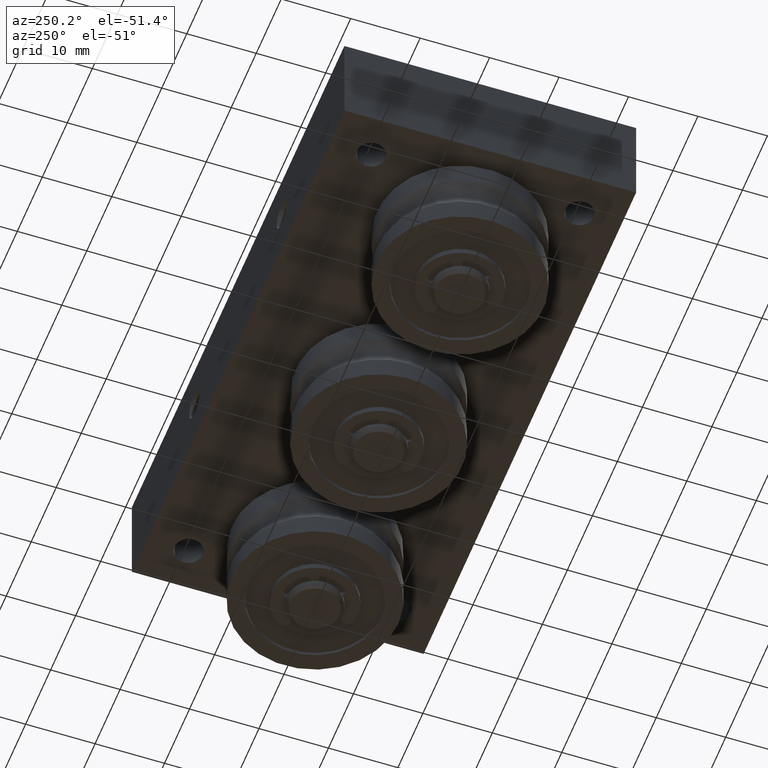
[diagram: clean part render]
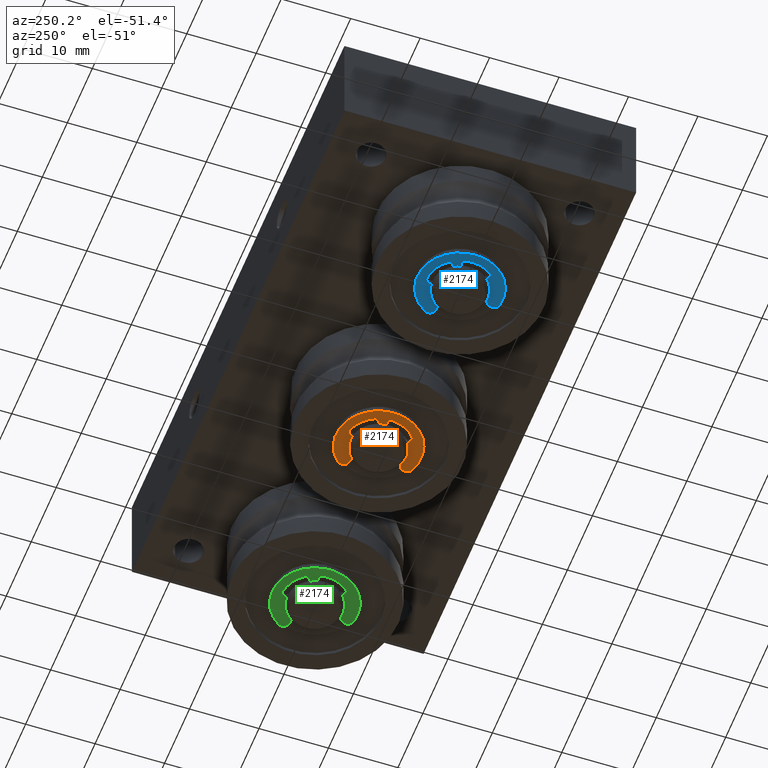
[diagram: same view with three faces highlighted in distinct colors, each labeled with its STEP entity id]
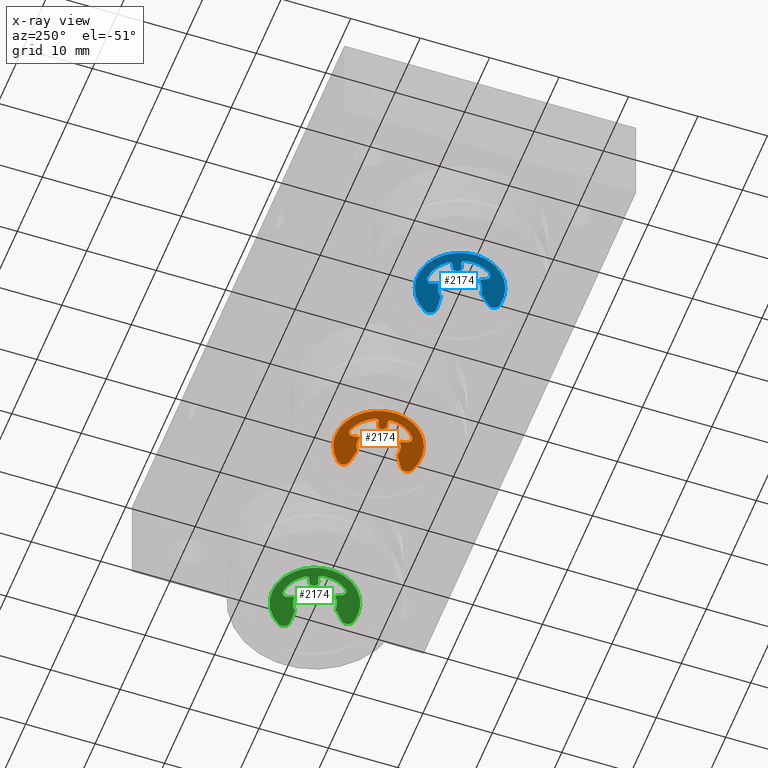
[diagram: x-ray of the same camera — body ghosted, the three highlighted faces saturated]
A machine part, auxiliary view with three faces highlighted in distinct colors.
The next image is the same camera in x-ray (body ghosted, the three faces saturated) — at least one of them is partly hidden behind the body in this view.
Their STEP definitions:

[orange] entity #2174 — the highlighted planar face has unit normal (0, 0, -1).
#230=PLANE('',#2634);
#393=FACE_OUTER_BOUND('',#564,.T.);
#564=EDGE_LOOP('',(#1906,#1907,#1908,#1909,#1910,#1911,#1912,#1913,#1914,
#1915,#1916,#1917,#1918,#1919,#1920,#1921,#1922,#1923,#1924,#1925));
#688=LINE('',#3798,#824);
#693=LINE('',#3816,#829);
#699=LINE('',#3840,#835);
#703=LINE('',#3852,#839);
#709=LINE('',#3876,#845);
#714=LINE('',#3894,#850);
#824=VECTOR('',#3150,10.);
#829=VECTOR('',#3169,10.);
#835=VECTOR('',#3195,10.);
#839=VECTOR('',#3207,10.);
#845=VECTOR('',#3233,10.);
#850=VECTOR('',#3252,10.);
#945=CIRCLE('',#2586,6.15);
#947=CIRCLE('',#2589,0.9);
#949=CIRCLE('',#2593,3.);
#951=CIRCLE('',#2596,0.18);
#953=CIRCLE('',#2600,0.72);
#955=CIRCLE('',#2603,4.8);
#957=CIRCLE('',#2606,0.48);
#959=CIRCLE('',#2610,0.6);
#961=CIRCLE('',#2614,0.48);
#963=CIRCLE('',#2617,4.8);
#965=CIRCLE('',#2620,0.72);
#967=CIRCLE('',#2624,0.18);
#969=CIRCLE('',#2627,3.);
#971=CIRCLE('',#2631,0.9);
#1107=VERTEX_POINT('',#3782);
#1108=VERTEX_POINT('',#3783);
#1111=VERTEX_POINT('',#3791);
#1113=VERTEX_POINT('',#3797);
#1115=VERTEX_POINT('',#3803);
#1117=VERTEX_POINT('',#3809);
#1119=VERTEX_POINT('',#3815);
#1121=VERTEX_POINT('',#3821);
#1123=VERTEX_POINT('',#3827);
#1125=VERTEX_POINT('',#3833);
#1127=VERTEX_POINT('',#3839);
#1129=VERTEX_POINT('',#3845);
#1131=VERTEX_POINT('',#3851);
#1133=VERTEX_POINT('',#3857);
#1135=VERTEX_POINT('',#3863);
#1137=VERTEX_POINT('',#3869);
#1139=VERTEX_POINT('',#3875);
#1141=VERTEX_POINT('',#3881);
#1143=VERTEX_POINT('',#3887);
#1145=VERTEX_POINT('',#3893);
#1349=EDGE_CURVE('',#1107,#1108,#945,.T.);
#1353=EDGE_CURVE('',#1108,#1111,#947,.T.);
#1356=EDGE_CURVE('',#1111,#1113,#688,.T.);
#1359=EDGE_CURVE('',#1113,#1115,#949,.T.);
#1362=EDGE_CURVE('',#1115,#1117,#951,.T.);
#1365=EDGE_CURVE('',#1117,#1119,#693,.T.);
#1368=EDGE_CURVE('',#1119,#1121,#953,.T.);
#1371=EDGE_CURVE('',#1121,#1123,#955,.T.);
#1374=EDGE_CURVE('',#1123,#1125,#957,.T.);
#1377=EDGE_CURVE('',#1125,#1127,#699,.T.);
#1380=EDGE_CURVE('',#1127,#1129,#959,.T.);
#1383=EDGE_CURVE('',#1129,#1131,#703,.T.);
#1386=EDGE_CURVE('',#1131,#1133,#961,.T.);
#1389=EDGE_CURVE('',#1133,#1135,#963,.T.);
#1392=EDGE_CURVE('',#1135,#1137,#965,.T.);
#1395=EDGE_CURVE('',#1137,#1139,#709,.T.);
#1398=EDGE_CURVE('',#1139,#1141,#967,.T.);
#1401=EDGE_CURVE('',#1141,#1143,#969,.T.);
#1404=EDGE_CURVE('',#1143,#1145,#714,.T.);
#1407=EDGE_CURVE('',#1145,#1107,#971,.T.);
#1906=ORIENTED_EDGE('',*,*,#1349,.F.);
#1907=ORIENTED_EDGE('',*,*,#1407,.F.);
#1908=ORIENTED_EDGE('',*,*,#1404,.F.);
#1909=ORIENTED_EDGE('',*,*,#1401,.F.);
#1910=ORIENTED_EDGE('',*,*,#1398,.F.);
#1911=ORIENTED_EDGE('',*,*,#1395,.F.);
#1912=ORIENTED_EDGE('',*,*,#1392,.F.);
#1913=ORIENTED_EDGE('',*,*,#1389,.F.);
#1914=ORIENTED_EDGE('',*,*,#1386,.F.);
#1915=ORIENTED_EDGE('',*,*,#1383,.F.);
#1916=ORIENTED_EDGE('',*,*,#1380,.F.);
#1917=ORIENTED_EDGE('',*,*,#1377,.F.);
#1918=ORIENTED_EDGE('',*,*,#1374,.F.);
#1919=ORIENTED_EDGE('',*,*,#1371,.F.);
#1920=ORIENTED_EDGE('',*,*,#1368,.F.);
#1921=ORIENTED_EDGE('',*,*,#1365,.F.);
#1922=ORIENTED_EDGE('',*,*,#1362,.F.);
#1923=ORIENTED_EDGE('',*,*,#1359,.F.);
#1924=ORIENTED_EDGE('',*,*,#1356,.F.);
#1925=ORIENTED_EDGE('',*,*,#1353,.F.);
#2174=ADVANCED_FACE('',(#393),#230,.T.);
#2586=AXIS2_PLACEMENT_3D('',#3784,#3135,#3136);
#2589=AXIS2_PLACEMENT_3D('',#3792,#3143,#3144);
#2593=AXIS2_PLACEMENT_3D('',#3804,#3155,#3156);
#2596=AXIS2_PLACEMENT_3D('',#3810,#3162,#3163);
#2600=AXIS2_PLACEMENT_3D('',#3822,#3174,#3175);
#2603=AXIS2_PLACEMENT_3D('',#3828,#3181,#3182);
#2606=AXIS2_PLACEMENT_3D('',#3834,#3188,#3189);
#2610=AXIS2_PLACEMENT_3D('',#3846,#3200,#3201);
#2614=AXIS2_PLACEMENT_3D('',#3858,#3212,#3213);
#2617=AXIS2_PLACEMENT_3D('',#3864,#3219,#3220);
#2620=AXIS2_PLACEMENT_3D('',#3870,#3226,#3227);
#2624=AXIS2_PLACEMENT_3D('',#3882,#3238,#3239);
#2627=AXIS2_PLACEMENT_3D('',#3888,#3245,#3246);
#2631=AXIS2_PLACEMENT_3D('',#3899,#3257,#3258);
#2634=AXIS2_PLACEMENT_3D('',#3902,#3263,#3264);
#3135=DIRECTION('center_axis',(0.,0.,-1.));
#3136=DIRECTION('ref_axis',(0.829936132517975,-0.55785841926165,0.));
#3143=DIRECTION('center_axis',(0.,0.,-1.));
#3144=DIRECTION('ref_axis',(-0.936609764876709,-0.35037429748427,0.));
#3150=DIRECTION('',(-0.35037429748427,0.936609764876709,0.));
#3155=DIRECTION('center_axis',(0.,0.,1.));
#3156=DIRECTION('ref_axis',(-0.916515138991168,0.4,0.));
#3162=DIRECTION('center_axis',(0.,0.,-1.));
#3163=DIRECTION('ref_axis',(0.,1.,0.));
#3169=DIRECTION('',(1.,0.,0.));
#3174=DIRECTION('center_axis',(0.,0.,1.));
#3175=DIRECTION('ref_axis',(0.,1.,0.));
#3181=DIRECTION('center_axis',(0.,0.,1.));
#3182=DIRECTION('ref_axis',(-0.882352941176471,-0.470588235294118,0.));
#3188=DIRECTION('center_axis',(0.,0.,1.));
#3189=DIRECTION('ref_axis',(-0.25,-0.968245836551854,0.));
#3195=DIRECTION('',(-7.14340955389861E-16,-1.,0.));
#3200=DIRECTION('center_axis',(0.,0.,-1.));
#3201=DIRECTION('ref_axis',(-1.,-3.75856753128308E-16,0.));
#3207=DIRECTION('',(-7.14340955389861E-16,1.,0.));
#3212=DIRECTION('center_axis',(0.,0.,1.));
#3213=DIRECTION('ref_axis',(-1.,-2.89120579329468E-16,0.));
#3219=DIRECTION('center_axis',(0.,0.,1.));
#3220=DIRECTION('ref_axis',(0.25,-0.968245836551854,0.));
#3226=DIRECTION('center_axis',(0.,0.,1.));
#3227=DIRECTION('ref_axis',(0.882352941176471,-0.470588235294118,0.));
#3233=DIRECTION('',(1.,0.,0.));
#3238=DIRECTION('center_axis',(0.,0.,-1.));
#3239=DIRECTION('ref_axis',(0.94716229418952,-0.320754716981132,0.));
#3245=DIRECTION('center_axis',(0.,0.,1.));
#3246=DIRECTION('ref_axis',(0.94716229418952,-0.320754716981132,0.));
#3252=DIRECTION('',(-0.35037429748427,-0.936609764876709,0.));
#3257=DIRECTION('center_axis',(0.,0.,-1.));
#3258=DIRECTION('ref_axis',(-0.829936132517974,-0.55785841926165,0.));
#3263=DIRECTION('center_axis',(0.,0.,1.));
#3264=DIRECTION('ref_axis',(1.,0.,0.));
#3782=CARTESIAN_POINT('',(-5.10410721498554,-6.90718126839215,0.7));
#3783=CARTESIAN_POINT('',(5.10410721498554,-6.90718126839215,0.7));
#3784=CARTESIAN_POINT('Origin',(4.40872847693047E-16,-3.476351989933,0.7));
#3791=CARTESIAN_POINT('',(3.51421590733033,-6.72044555879251,0.7));
#3792=CARTESIAN_POINT('Origin',(4.35716469571937,-6.40510869105666,0.7));
#3797=CARTESIAN_POINT('',(2.7495454169735,-4.676351989933,0.7));
#3798=CARTESIAN_POINT('',(2.7495454169735,-4.676351989933,0.7));
#3803=CARTESIAN_POINT('',(2.84148688256856,-2.51408783898961,0.7));
#3804=CARTESIAN_POINT('Origin',(4.40872847693047E-16,-3.476351989933,0.7));
#3809=CARTESIAN_POINT('',(3.01197609552267,-2.276351989933,0.7));
#3810=CARTESIAN_POINT('Origin',(3.01197609552267,-2.456351989933,0.7));
#3815=CARTESIAN_POINT('',(3.6,-2.276351989933,0.7));
#3816=CARTESIAN_POINT('',(3.6,-2.276351989933,0.7));
#3821=CARTESIAN_POINT('',(4.23529411764706,-1.21752846052124,0.7));
#3822=CARTESIAN_POINT('Origin',(3.6,-1.556351989933,0.7));
#3827=CARTESIAN_POINT('',(1.2,1.1712280255159,0.7));
#3828=CARTESIAN_POINT('Origin',(4.40872847693047E-16,-3.476351989933,0.7));
#3833=CARTESIAN_POINT('',(0.600000000000001,0.70647002397101,0.7));
#3834=CARTESIAN_POINT('Origin',(1.08,0.706470023971009,0.7));
#3839=CARTESIAN_POINT('',(0.6,0.123648010066999,0.7));
#3840=CARTESIAN_POINT('',(0.6,0.123648010066999,0.7));
#3845=CARTESIAN_POINT('',(-0.6,0.123648010066999,0.7));
#3846=CARTESIAN_POINT('Origin',(-5.52223736129294E-33,0.123648010066999,
0.7));
#3851=CARTESIAN_POINT('',(-0.600000000000001,0.70647002397101,0.7));
#3852=CARTESIAN_POINT('',(-0.600000000000001,0.70647002397101,0.7));
#3857=CARTESIAN_POINT('',(-1.2,1.1712280255159,0.7));
#3858=CARTESIAN_POINT('Origin',(-1.08,0.706470023971009,0.7));
#3863=CARTESIAN_POINT('',(-4.23529411764706,-1.21752846052124,0.7));
#3864=CARTESIAN_POINT('Origin',(4.40872847693047E-16,-3.476351989933,0.7));
#3869=CARTESIAN_POINT('',(-3.6,-2.276351989933,0.7));
#3870=CARTESIAN_POINT('Origin',(-3.6,-1.556351989933,0.7));
#3875=CARTESIAN_POINT('',(-3.01197609552267,-2.276351989933,0.7));
#3876=CARTESIAN_POINT('',(-3.01197609552267,-2.276351989933,0.7));
#3881=CARTESIAN_POINT('',(-2.84148688256856,-2.51408783898961,0.7));
#3882=CARTESIAN_POINT('Origin',(-3.01197609552267,-2.456351989933,0.7));
#3887=CARTESIAN_POINT('',(-2.7495454169735,-4.676351989933,0.7));
#3888=CARTESIAN_POINT('Origin',(4.40872847693047E-16,-3.476351989933,0.7));
#3893=CARTESIAN_POINT('',(-3.51421590733033,-6.72044555879251,0.7));
#3894=CARTESIAN_POINT('',(-3.51421590733033,-6.72044555879251,0.7));
#3899=CARTESIAN_POINT('Origin',(-4.35716469571937,-6.40510869105666,0.7));
#3902=CARTESIAN_POINT('Origin',(2.77555756156289E-16,-1.89417911030844,
0.7));

[blue] entity #2174 — the highlighted planar face has unit normal (-0, 0, -1).
#230=PLANE('',#2634);
#393=FACE_OUTER_BOUND('',#564,.T.);
#564=EDGE_LOOP('',(#1906,#1907,#1908,#1909,#1910,#1911,#1912,#1913,#1914,
#1915,#1916,#1917,#1918,#1919,#1920,#1921,#1922,#1923,#1924,#1925));
#688=LINE('',#3798,#824);
#693=LINE('',#3816,#829);
#699=LINE('',#3840,#835);
#703=LINE('',#3852,#839);
#709=LINE('',#3876,#845);
#714=LINE('',#3894,#850);
#824=VECTOR('',#3150,10.);
#829=VECTOR('',#3169,10.);
#835=VECTOR('',#3195,10.);
#839=VECTOR('',#3207,10.);
#845=VECTOR('',#3233,10.);
#850=VECTOR('',#3252,10.);
#945=CIRCLE('',#2586,6.15);
#947=CIRCLE('',#2589,0.9);
#949=CIRCLE('',#2593,3.);
#951=CIRCLE('',#2596,0.18);
#953=CIRCLE('',#2600,0.72);
#955=CIRCLE('',#2603,4.8);
#957=CIRCLE('',#2606,0.48);
#959=CIRCLE('',#2610,0.6);
#961=CIRCLE('',#2614,0.48);
#963=CIRCLE('',#2617,4.8);
#965=CIRCLE('',#2620,0.72);
#967=CIRCLE('',#2624,0.18);
#969=CIRCLE('',#2627,3.);
#971=CIRCLE('',#2631,0.9);
#1107=VERTEX_POINT('',#3782);
#1108=VERTEX_POINT('',#3783);
#1111=VERTEX_POINT('',#3791);
#1113=VERTEX_POINT('',#3797);
#1115=VERTEX_POINT('',#3803);
#1117=VERTEX_POINT('',#3809);
#1119=VERTEX_POINT('',#3815);
#1121=VERTEX_POINT('',#3821);
#1123=VERTEX_POINT('',#3827);
#1125=VERTEX_POINT('',#3833);
#1127=VERTEX_POINT('',#3839);
#1129=VERTEX_POINT('',#3845);
#1131=VERTEX_POINT('',#3851);
#1133=VERTEX_POINT('',#3857);
#1135=VERTEX_POINT('',#3863);
#1137=VERTEX_POINT('',#3869);
#1139=VERTEX_POINT('',#3875);
#1141=VERTEX_POINT('',#3881);
#1143=VERTEX_POINT('',#3887);
#1145=VERTEX_POINT('',#3893);
#1349=EDGE_CURVE('',#1107,#1108,#945,.T.);
#1353=EDGE_CURVE('',#1108,#1111,#947,.T.);
#1356=EDGE_CURVE('',#1111,#1113,#688,.T.);
#1359=EDGE_CURVE('',#1113,#1115,#949,.T.);
#1362=EDGE_CURVE('',#1115,#1117,#951,.T.);
#1365=EDGE_CURVE('',#1117,#1119,#693,.T.);
#1368=EDGE_CURVE('',#1119,#1121,#953,.T.);
#1371=EDGE_CURVE('',#1121,#1123,#955,.T.);
#1374=EDGE_CURVE('',#1123,#1125,#957,.T.);
#1377=EDGE_CURVE('',#1125,#1127,#699,.T.);
#1380=EDGE_CURVE('',#1127,#1129,#959,.T.);
#1383=EDGE_CURVE('',#1129,#1131,#703,.T.);
#1386=EDGE_CURVE('',#1131,#1133,#961,.T.);
#1389=EDGE_CURVE('',#1133,#1135,#963,.T.);
#1392=EDGE_CURVE('',#1135,#1137,#965,.T.);
#1395=EDGE_CURVE('',#1137,#1139,#709,.T.);
#1398=EDGE_CURVE('',#1139,#1141,#967,.T.);
#1401=EDGE_CURVE('',#1141,#1143,#969,.T.);
#1404=EDGE_CURVE('',#1143,#1145,#714,.T.);
#1407=EDGE_CURVE('',#1145,#1107,#971,.T.);
#1906=ORIENTED_EDGE('',*,*,#1349,.F.);
#1907=ORIENTED_EDGE('',*,*,#1407,.F.);
#1908=ORIENTED_EDGE('',*,*,#1404,.F.);
#1909=ORIENTED_EDGE('',*,*,#1401,.F.);
#1910=ORIENTED_EDGE('',*,*,#1398,.F.);
#1911=ORIENTED_EDGE('',*,*,#1395,.F.);
#1912=ORIENTED_EDGE('',*,*,#1392,.F.);
#1913=ORIENTED_EDGE('',*,*,#1389,.F.);
#1914=ORIENTED_EDGE('',*,*,#1386,.F.);
#1915=ORIENTED_EDGE('',*,*,#1383,.F.);
#1916=ORIENTED_EDGE('',*,*,#1380,.F.);
#1917=ORIENTED_EDGE('',*,*,#1377,.F.);
#1918=ORIENTED_EDGE('',*,*,#1374,.F.);
#1919=ORIENTED_EDGE('',*,*,#1371,.F.);
#1920=ORIENTED_EDGE('',*,*,#1368,.F.);
#1921=ORIENTED_EDGE('',*,*,#1365,.F.);
#1922=ORIENTED_EDGE('',*,*,#1362,.F.);
#1923=ORIENTED_EDGE('',*,*,#1359,.F.);
#1924=ORIENTED_EDGE('',*,*,#1356,.F.);
#1925=ORIENTED_EDGE('',*,*,#1353,.F.);
#2174=ADVANCED_FACE('',(#393),#230,.T.);
#2586=AXIS2_PLACEMENT_3D('',#3784,#3135,#3136);
#2589=AXIS2_PLACEMENT_3D('',#3792,#3143,#3144);
#2593=AXIS2_PLACEMENT_3D('',#3804,#3155,#3156);
#2596=AXIS2_PLACEMENT_3D('',#3810,#3162,#3163);
#2600=AXIS2_PLACEMENT_3D('',#3822,#3174,#3175);
#2603=AXIS2_PLACEMENT_3D('',#3828,#3181,#3182);
#2606=AXIS2_PLACEMENT_3D('',#3834,#3188,#3189);
#2610=AXIS2_PLACEMENT_3D('',#3846,#3200,#3201);
#2614=AXIS2_PLACEMENT_3D('',#3858,#3212,#3213);
#2617=AXIS2_PLACEMENT_3D('',#3864,#3219,#3220);
#2620=AXIS2_PLACEMENT_3D('',#3870,#3226,#3227);
#2624=AXIS2_PLACEMENT_3D('',#3882,#3238,#3239);
#2627=AXIS2_PLACEMENT_3D('',#3888,#3245,#3246);
#2631=AXIS2_PLACEMENT_3D('',#3899,#3257,#3258);
#2634=AXIS2_PLACEMENT_3D('',#3902,#3263,#3264);
#3135=DIRECTION('center_axis',(0.,0.,-1.));
#3136=DIRECTION('ref_axis',(0.829936132517975,-0.55785841926165,0.));
#3143=DIRECTION('center_axis',(0.,0.,-1.));
#3144=DIRECTION('ref_axis',(-0.936609764876709,-0.35037429748427,0.));
#3150=DIRECTION('',(-0.35037429748427,0.936609764876709,0.));
#3155=DIRECTION('center_axis',(0.,0.,1.));
#3156=DIRECTION('ref_axis',(-0.916515138991168,0.4,0.));
#3162=DIRECTION('center_axis',(0.,0.,-1.));
#3163=DIRECTION('ref_axis',(0.,1.,0.));
#3169=DIRECTION('',(1.,0.,0.));
#3174=DIRECTION('center_axis',(0.,0.,1.));
#3175=DIRECTION('ref_axis',(0.,1.,0.));
#3181=DIRECTION('center_axis',(0.,0.,1.));
#3182=DIRECTION('ref_axis',(-0.882352941176471,-0.470588235294118,0.));
#3188=DIRECTION('center_axis',(0.,0.,1.));
#3189=DIRECTION('ref_axis',(-0.25,-0.968245836551854,0.));
#3195=DIRECTION('',(-7.14340955389861E-16,-1.,0.));
#3200=DIRECTION('center_axis',(0.,0.,-1.));
#3201=DIRECTION('ref_axis',(-1.,-3.75856753128308E-16,0.));
#3207=DIRECTION('',(-7.14340955389861E-16,1.,0.));
#3212=DIRECTION('center_axis',(0.,0.,1.));
#3213=DIRECTION('ref_axis',(-1.,-2.89120579329468E-16,0.));
#3219=DIRECTION('center_axis',(0.,0.,1.));
#3220=DIRECTION('ref_axis',(0.25,-0.968245836551854,0.));
#3226=DIRECTION('center_axis',(0.,0.,1.));
#3227=DIRECTION('ref_axis',(0.882352941176471,-0.470588235294118,0.));
#3233=DIRECTION('',(1.,0.,0.));
#3238=DIRECTION('center_axis',(0.,0.,-1.));
#3239=DIRECTION('ref_axis',(0.94716229418952,-0.320754716981132,0.));
#3245=DIRECTION('center_axis',(0.,0.,1.));
#3246=DIRECTION('ref_axis',(0.94716229418952,-0.320754716981132,0.));
#3252=DIRECTION('',(-0.35037429748427,-0.936609764876709,0.));
#3257=DIRECTION('center_axis',(0.,0.,-1.));
#3258=DIRECTION('ref_axis',(-0.829936132517974,-0.55785841926165,0.));
#3263=DIRECTION('center_axis',(0.,0.,1.));
#3264=DIRECTION('ref_axis',(1.,0.,0.));
#3782=CARTESIAN_POINT('',(-5.10410721498554,-6.90718126839215,0.7));
#3783=CARTESIAN_POINT('',(5.10410721498554,-6.90718126839215,0.7));
#3784=CARTESIAN_POINT('Origin',(4.40872847693047E-16,-3.476351989933,0.7));
#3791=CARTESIAN_POINT('',(3.51421590733033,-6.72044555879251,0.7));
#3792=CARTESIAN_POINT('Origin',(4.35716469571937,-6.40510869105666,0.7));
#3797=CARTESIAN_POINT('',(2.7495454169735,-4.676351989933,0.7));
#3798=CARTESIAN_POINT('',(2.7495454169735,-4.676351989933,0.7));
#3803=CARTESIAN_POINT('',(2.84148688256856,-2.51408783898961,0.7));
#3804=CARTESIAN_POINT('Origin',(4.40872847693047E-16,-3.476351989933,0.7));
#3809=CARTESIAN_POINT('',(3.01197609552267,-2.276351989933,0.7));
#3810=CARTESIAN_POINT('Origin',(3.01197609552267,-2.456351989933,0.7));
#3815=CARTESIAN_POINT('',(3.6,-2.276351989933,0.7));
#3816=CARTESIAN_POINT('',(3.6,-2.276351989933,0.7));
#3821=CARTESIAN_POINT('',(4.23529411764706,-1.21752846052124,0.7));
#3822=CARTESIAN_POINT('Origin',(3.6,-1.556351989933,0.7));
#3827=CARTESIAN_POINT('',(1.2,1.1712280255159,0.7));
#3828=CARTESIAN_POINT('Origin',(4.40872847693047E-16,-3.476351989933,0.7));
#3833=CARTESIAN_POINT('',(0.600000000000001,0.70647002397101,0.7));
#3834=CARTESIAN_POINT('Origin',(1.08,0.706470023971009,0.7));
#3839=CARTESIAN_POINT('',(0.6,0.123648010066999,0.7));
#3840=CARTESIAN_POINT('',(0.6,0.123648010066999,0.7));
#3845=CARTESIAN_POINT('',(-0.6,0.123648010066999,0.7));
#3846=CARTESIAN_POINT('Origin',(-5.52223736129294E-33,0.123648010066999,
0.7));
#3851=CARTESIAN_POINT('',(-0.600000000000001,0.70647002397101,0.7));
#3852=CARTESIAN_POINT('',(-0.600000000000001,0.70647002397101,0.7));
#3857=CARTESIAN_POINT('',(-1.2,1.1712280255159,0.7));
#3858=CARTESIAN_POINT('Origin',(-1.08,0.706470023971009,0.7));
#3863=CARTESIAN_POINT('',(-4.23529411764706,-1.21752846052124,0.7));
#3864=CARTESIAN_POINT('Origin',(4.40872847693047E-16,-3.476351989933,0.7));
#3869=CARTESIAN_POINT('',(-3.6,-2.276351989933,0.7));
#3870=CARTESIAN_POINT('Origin',(-3.6,-1.556351989933,0.7));
#3875=CARTESIAN_POINT('',(-3.01197609552267,-2.276351989933,0.7));
#3876=CARTESIAN_POINT('',(-3.01197609552267,-2.276351989933,0.7));
#3881=CARTESIAN_POINT('',(-2.84148688256856,-2.51408783898961,0.7));
#3882=CARTESIAN_POINT('Origin',(-3.01197609552267,-2.456351989933,0.7));
#3887=CARTESIAN_POINT('',(-2.7495454169735,-4.676351989933,0.7));
#3888=CARTESIAN_POINT('Origin',(4.40872847693047E-16,-3.476351989933,0.7));
#3893=CARTESIAN_POINT('',(-3.51421590733033,-6.72044555879251,0.7));
#3894=CARTESIAN_POINT('',(-3.51421590733033,-6.72044555879251,0.7));
#3899=CARTESIAN_POINT('Origin',(-4.35716469571937,-6.40510869105666,0.7));
#3902=CARTESIAN_POINT('Origin',(2.77555756156289E-16,-1.89417911030844,
0.7));

[green] entity #2174 — the highlighted planar face has unit normal (-0, 0, -1).
#230=PLANE('',#2634);
#393=FACE_OUTER_BOUND('',#564,.T.);
#564=EDGE_LOOP('',(#1906,#1907,#1908,#1909,#1910,#1911,#1912,#1913,#1914,
#1915,#1916,#1917,#1918,#1919,#1920,#1921,#1922,#1923,#1924,#1925));
#688=LINE('',#3798,#824);
#693=LINE('',#3816,#829);
#699=LINE('',#3840,#835);
#703=LINE('',#3852,#839);
#709=LINE('',#3876,#845);
#714=LINE('',#3894,#850);
#824=VECTOR('',#3150,10.);
#829=VECTOR('',#3169,10.);
#835=VECTOR('',#3195,10.);
#839=VECTOR('',#3207,10.);
#845=VECTOR('',#3233,10.);
#850=VECTOR('',#3252,10.);
#945=CIRCLE('',#2586,6.15);
#947=CIRCLE('',#2589,0.9);
#949=CIRCLE('',#2593,3.);
#951=CIRCLE('',#2596,0.18);
#953=CIRCLE('',#2600,0.72);
#955=CIRCLE('',#2603,4.8);
#957=CIRCLE('',#2606,0.48);
#959=CIRCLE('',#2610,0.6);
#961=CIRCLE('',#2614,0.48);
#963=CIRCLE('',#2617,4.8);
#965=CIRCLE('',#2620,0.72);
#967=CIRCLE('',#2624,0.18);
#969=CIRCLE('',#2627,3.);
#971=CIRCLE('',#2631,0.9);
#1107=VERTEX_POINT('',#3782);
#1108=VERTEX_POINT('',#3783);
#1111=VERTEX_POINT('',#3791);
#1113=VERTEX_POINT('',#3797);
#1115=VERTEX_POINT('',#3803);
#1117=VERTEX_POINT('',#3809);
#1119=VERTEX_POINT('',#3815);
#1121=VERTEX_POINT('',#3821);
#1123=VERTEX_POINT('',#3827);
#1125=VERTEX_POINT('',#3833);
#1127=VERTEX_POINT('',#3839);
#1129=VERTEX_POINT('',#3845);
#1131=VERTEX_POINT('',#3851);
#1133=VERTEX_POINT('',#3857);
#1135=VERTEX_POINT('',#3863);
#1137=VERTEX_POINT('',#3869);
#1139=VERTEX_POINT('',#3875);
#1141=VERTEX_POINT('',#3881);
#1143=VERTEX_POINT('',#3887);
#1145=VERTEX_POINT('',#3893);
#1349=EDGE_CURVE('',#1107,#1108,#945,.T.);
#1353=EDGE_CURVE('',#1108,#1111,#947,.T.);
#1356=EDGE_CURVE('',#1111,#1113,#688,.T.);
#1359=EDGE_CURVE('',#1113,#1115,#949,.T.);
#1362=EDGE_CURVE('',#1115,#1117,#951,.T.);
#1365=EDGE_CURVE('',#1117,#1119,#693,.T.);
#1368=EDGE_CURVE('',#1119,#1121,#953,.T.);
#1371=EDGE_CURVE('',#1121,#1123,#955,.T.);
#1374=EDGE_CURVE('',#1123,#1125,#957,.T.);
#1377=EDGE_CURVE('',#1125,#1127,#699,.T.);
#1380=EDGE_CURVE('',#1127,#1129,#959,.T.);
#1383=EDGE_CURVE('',#1129,#1131,#703,.T.);
#1386=EDGE_CURVE('',#1131,#1133,#961,.T.);
#1389=EDGE_CURVE('',#1133,#1135,#963,.T.);
#1392=EDGE_CURVE('',#1135,#1137,#965,.T.);
#1395=EDGE_CURVE('',#1137,#1139,#709,.T.);
#1398=EDGE_CURVE('',#1139,#1141,#967,.T.);
#1401=EDGE_CURVE('',#1141,#1143,#969,.T.);
#1404=EDGE_CURVE('',#1143,#1145,#714,.T.);
#1407=EDGE_CURVE('',#1145,#1107,#971,.T.);
#1906=ORIENTED_EDGE('',*,*,#1349,.F.);
#1907=ORIENTED_EDGE('',*,*,#1407,.F.);
#1908=ORIENTED_EDGE('',*,*,#1404,.F.);
#1909=ORIENTED_EDGE('',*,*,#1401,.F.);
#1910=ORIENTED_EDGE('',*,*,#1398,.F.);
#1911=ORIENTED_EDGE('',*,*,#1395,.F.);
#1912=ORIENTED_EDGE('',*,*,#1392,.F.);
#1913=ORIENTED_EDGE('',*,*,#1389,.F.);
#1914=ORIENTED_EDGE('',*,*,#1386,.F.);
#1915=ORIENTED_EDGE('',*,*,#1383,.F.);
#1916=ORIENTED_EDGE('',*,*,#1380,.F.);
#1917=ORIENTED_EDGE('',*,*,#1377,.F.);
#1918=ORIENTED_EDGE('',*,*,#1374,.F.);
#1919=ORIENTED_EDGE('',*,*,#1371,.F.);
#1920=ORIENTED_EDGE('',*,*,#1368,.F.);
#1921=ORIENTED_EDGE('',*,*,#1365,.F.);
#1922=ORIENTED_EDGE('',*,*,#1362,.F.);
#1923=ORIENTED_EDGE('',*,*,#1359,.F.);
#1924=ORIENTED_EDGE('',*,*,#1356,.F.);
#1925=ORIENTED_EDGE('',*,*,#1353,.F.);
#2174=ADVANCED_FACE('',(#393),#230,.T.);
#2586=AXIS2_PLACEMENT_3D('',#3784,#3135,#3136);
#2589=AXIS2_PLACEMENT_3D('',#3792,#3143,#3144);
#2593=AXIS2_PLACEMENT_3D('',#3804,#3155,#3156);
#2596=AXIS2_PLACEMENT_3D('',#3810,#3162,#3163);
#2600=AXIS2_PLACEMENT_3D('',#3822,#3174,#3175);
#2603=AXIS2_PLACEMENT_3D('',#3828,#3181,#3182);
#2606=AXIS2_PLACEMENT_3D('',#3834,#3188,#3189);
#2610=AXIS2_PLACEMENT_3D('',#3846,#3200,#3201);
#2614=AXIS2_PLACEMENT_3D('',#3858,#3212,#3213);
#2617=AXIS2_PLACEMENT_3D('',#3864,#3219,#3220);
#2620=AXIS2_PLACEMENT_3D('',#3870,#3226,#3227);
#2624=AXIS2_PLACEMENT_3D('',#3882,#3238,#3239);
#2627=AXIS2_PLACEMENT_3D('',#3888,#3245,#3246);
#2631=AXIS2_PLACEMENT_3D('',#3899,#3257,#3258);
#2634=AXIS2_PLACEMENT_3D('',#3902,#3263,#3264);
#3135=DIRECTION('center_axis',(0.,0.,-1.));
#3136=DIRECTION('ref_axis',(0.829936132517975,-0.55785841926165,0.));
#3143=DIRECTION('center_axis',(0.,0.,-1.));
#3144=DIRECTION('ref_axis',(-0.936609764876709,-0.35037429748427,0.));
#3150=DIRECTION('',(-0.35037429748427,0.936609764876709,0.));
#3155=DIRECTION('center_axis',(0.,0.,1.));
#3156=DIRECTION('ref_axis',(-0.916515138991168,0.4,0.));
#3162=DIRECTION('center_axis',(0.,0.,-1.));
#3163=DIRECTION('ref_axis',(0.,1.,0.));
#3169=DIRECTION('',(1.,0.,0.));
#3174=DIRECTION('center_axis',(0.,0.,1.));
#3175=DIRECTION('ref_axis',(0.,1.,0.));
#3181=DIRECTION('center_axis',(0.,0.,1.));
#3182=DIRECTION('ref_axis',(-0.882352941176471,-0.470588235294118,0.));
#3188=DIRECTION('center_axis',(0.,0.,1.));
#3189=DIRECTION('ref_axis',(-0.25,-0.968245836551854,0.));
#3195=DIRECTION('',(-7.14340955389861E-16,-1.,0.));
#3200=DIRECTION('center_axis',(0.,0.,-1.));
#3201=DIRECTION('ref_axis',(-1.,-3.75856753128308E-16,0.));
#3207=DIRECTION('',(-7.14340955389861E-16,1.,0.));
#3212=DIRECTION('center_axis',(0.,0.,1.));
#3213=DIRECTION('ref_axis',(-1.,-2.89120579329468E-16,0.));
#3219=DIRECTION('center_axis',(0.,0.,1.));
#3220=DIRECTION('ref_axis',(0.25,-0.968245836551854,0.));
#3226=DIRECTION('center_axis',(0.,0.,1.));
#3227=DIRECTION('ref_axis',(0.882352941176471,-0.470588235294118,0.));
#3233=DIRECTION('',(1.,0.,0.));
#3238=DIRECTION('center_axis',(0.,0.,-1.));
#3239=DIRECTION('ref_axis',(0.94716229418952,-0.320754716981132,0.));
#3245=DIRECTION('center_axis',(0.,0.,1.));
#3246=DIRECTION('ref_axis',(0.94716229418952,-0.320754716981132,0.));
#3252=DIRECTION('',(-0.35037429748427,-0.936609764876709,0.));
#3257=DIRECTION('center_axis',(0.,0.,-1.));
#3258=DIRECTION('ref_axis',(-0.829936132517974,-0.55785841926165,0.));
#3263=DIRECTION('center_axis',(0.,0.,1.));
#3264=DIRECTION('ref_axis',(1.,0.,0.));
#3782=CARTESIAN_POINT('',(-5.10410721498554,-6.90718126839215,0.7));
#3783=CARTESIAN_POINT('',(5.10410721498554,-6.90718126839215,0.7));
#3784=CARTESIAN_POINT('Origin',(4.40872847693047E-16,-3.476351989933,0.7));
#3791=CARTESIAN_POINT('',(3.51421590733033,-6.72044555879251,0.7));
#3792=CARTESIAN_POINT('Origin',(4.35716469571937,-6.40510869105666,0.7));
#3797=CARTESIAN_POINT('',(2.7495454169735,-4.676351989933,0.7));
#3798=CARTESIAN_POINT('',(2.7495454169735,-4.676351989933,0.7));
#3803=CARTESIAN_POINT('',(2.84148688256856,-2.51408783898961,0.7));
#3804=CARTESIAN_POINT('Origin',(4.40872847693047E-16,-3.476351989933,0.7));
#3809=CARTESIAN_POINT('',(3.01197609552267,-2.276351989933,0.7));
#3810=CARTESIAN_POINT('Origin',(3.01197609552267,-2.456351989933,0.7));
#3815=CARTESIAN_POINT('',(3.6,-2.276351989933,0.7));
#3816=CARTESIAN_POINT('',(3.6,-2.276351989933,0.7));
#3821=CARTESIAN_POINT('',(4.23529411764706,-1.21752846052124,0.7));
#3822=CARTESIAN_POINT('Origin',(3.6,-1.556351989933,0.7));
#3827=CARTESIAN_POINT('',(1.2,1.1712280255159,0.7));
#3828=CARTESIAN_POINT('Origin',(4.40872847693047E-16,-3.476351989933,0.7));
#3833=CARTESIAN_POINT('',(0.600000000000001,0.70647002397101,0.7));
#3834=CARTESIAN_POINT('Origin',(1.08,0.706470023971009,0.7));
#3839=CARTESIAN_POINT('',(0.6,0.123648010066999,0.7));
#3840=CARTESIAN_POINT('',(0.6,0.123648010066999,0.7));
#3845=CARTESIAN_POINT('',(-0.6,0.123648010066999,0.7));
#3846=CARTESIAN_POINT('Origin',(-5.52223736129294E-33,0.123648010066999,
0.7));
#3851=CARTESIAN_POINT('',(-0.600000000000001,0.70647002397101,0.7));
#3852=CARTESIAN_POINT('',(-0.600000000000001,0.70647002397101,0.7));
#3857=CARTESIAN_POINT('',(-1.2,1.1712280255159,0.7));
#3858=CARTESIAN_POINT('Origin',(-1.08,0.706470023971009,0.7));
#3863=CARTESIAN_POINT('',(-4.23529411764706,-1.21752846052124,0.7));
#3864=CARTESIAN_POINT('Origin',(4.40872847693047E-16,-3.476351989933,0.7));
#3869=CARTESIAN_POINT('',(-3.6,-2.276351989933,0.7));
#3870=CARTESIAN_POINT('Origin',(-3.6,-1.556351989933,0.7));
#3875=CARTESIAN_POINT('',(-3.01197609552267,-2.276351989933,0.7));
#3876=CARTESIAN_POINT('',(-3.01197609552267,-2.276351989933,0.7));
#3881=CARTESIAN_POINT('',(-2.84148688256856,-2.51408783898961,0.7));
#3882=CARTESIAN_POINT('Origin',(-3.01197609552267,-2.456351989933,0.7));
#3887=CARTESIAN_POINT('',(-2.7495454169735,-4.676351989933,0.7));
#3888=CARTESIAN_POINT('Origin',(4.40872847693047E-16,-3.476351989933,0.7));
#3893=CARTESIAN_POINT('',(-3.51421590733033,-6.72044555879251,0.7));
#3894=CARTESIAN_POINT('',(-3.51421590733033,-6.72044555879251,0.7));
#3899=CARTESIAN_POINT('Origin',(-4.35716469571937,-6.40510869105666,0.7));
#3902=CARTESIAN_POINT('Origin',(2.77555756156289E-16,-1.89417911030844,
0.7));